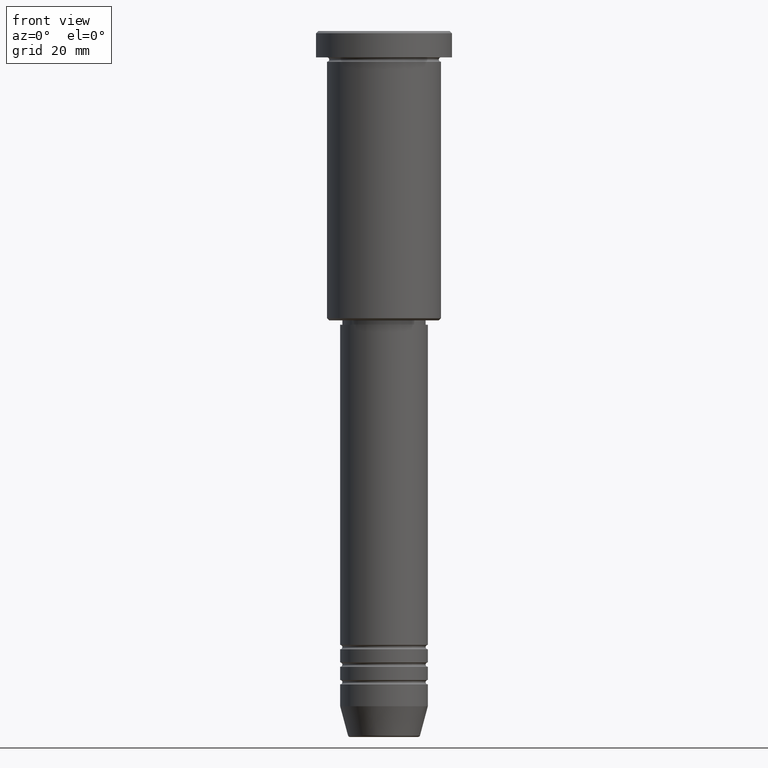
[diagram: clean part render]
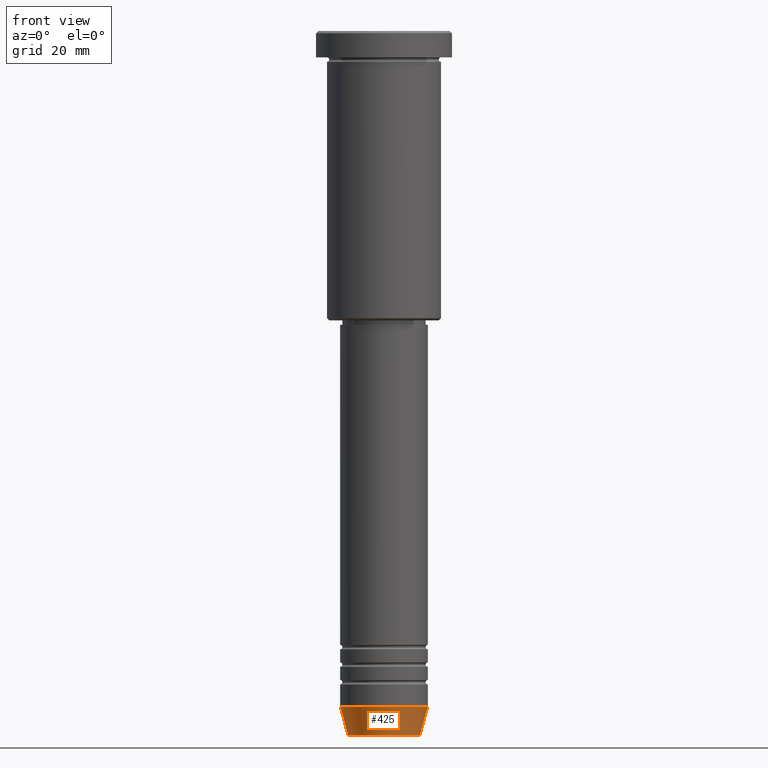
[diagram: same view with one face highlighted and labeled with its STEP entity id]
A machine part, front view. The second image highlights one B-rep face of the part: STEP entity #425.
In plain terms, the highlighted conical surface has half-angle 15 deg.
Its self-contained STEP definition (entity closure, byte-faithful):
#1 = DIRECTION ( 'NONE',  ( 1.000000000000000000, 0.000000000000000000, 0.000000000000000000 ) ) ;
#6 = CARTESIAN_POINT ( 'NONE',  ( 0.000000000000000000, 0.000000000000000000, -160.6294095225512990 ) ) ;
#33 = EDGE_CURVE ( 'NONE', #566, #641, #1142, .T. ) ;
#146 = AXIS2_PLACEMENT_3D ( 'NONE', #411, #852, #1147 ) ;
#179 = CARTESIAN_POINT ( 'NONE',  ( -8.223655072137185940, 1.115877042642911659E-15, -160.6294095225512990 ) ) ;
#184 = CONICAL_SURFACE ( 'NONE', #146, 10.00000000000000000, 0.2617993877991497964 ) ;
#196 = DIRECTION ( 'NONE',  ( -0.000000000000000000, -0.000000000000000000, 1.000000000000000000 ) ) ;
#203 = VERTEX_POINT ( 'NONE', #179 ) ;
#266 = AXIS2_PLACEMENT_3D ( 'NONE', #6, #196, #1 ) ;
#294 = CARTESIAN_POINT ( 'NONE',  ( -10.00000000000000000, 1.224646799147353256E-15, -154.0000000000000284 ) ) ;
#359 = CARTESIAN_POINT ( 'NONE',  ( -10.00000000000000000, 1.224646799147353256E-15, -154.0000000000000284 ) ) ;
#387 = AXIS2_PLACEMENT_3D ( 'NONE', #1120, #404, #493 ) ;
#404 = DIRECTION ( 'NONE',  ( -0.000000000000000000, -0.000000000000000000, 1.000000000000000000 ) ) ;
#411 = CARTESIAN_POINT ( 'NONE',  ( 0.000000000000000000, 0.000000000000000000, -154.0000000000000284 ) ) ;
#425 = ADVANCED_FACE ( 'NONE', ( #1057 ), #184, .T. ) ;
#493 = DIRECTION ( 'NONE',  ( 1.000000000000000000, 0.000000000000000000, 0.000000000000000000 ) ) ;
#566 = VERTEX_POINT ( 'NONE', #1083 ) ;
#587 = EDGE_CURVE ( 'NONE', #203, #1061, #807, .T. ) ;
#588 = DIRECTION ( 'NONE',  ( 0.2588190451025210725, 0.000000000000000000, 0.9659258262890680902 ) ) ;
#633 = DIRECTION ( 'NONE',  ( -0.2588190451025210725, 3.169619151431769255E-17, 0.9659258262890680902 ) ) ;
#641 = VERTEX_POINT ( 'NONE', #1070 ) ;
#693 = ORIENTED_EDGE ( 'NONE', *, *, #587, .F. ) ;
#746 = ORIENTED_EDGE ( 'NONE', *, *, #33, .T. ) ;
#754 = EDGE_LOOP ( 'NONE', ( #693, #949, #746, #923 ) ) ;
#807 = LINE ( 'NONE', #359, #874 ) ;
#852 = DIRECTION ( 'NONE',  ( -0.000000000000000000, -0.000000000000000000, 1.000000000000000000 ) ) ;
#861 = CARTESIAN_POINT ( 'NONE',  ( 10.00000000000000000, 0.000000000000000000, -154.0000000000000284 ) ) ;
#874 = VECTOR ( 'NONE', #633, 1000.000000000000114 ) ;
#906 = EDGE_CURVE ( 'NONE', #203, #566, #977, .T. ) ;
#910 = VECTOR ( 'NONE', #588, 1000.000000000000114 ) ;
#923 = ORIENTED_EDGE ( 'NONE', *, *, #1088, .F. ) ;
#949 = ORIENTED_EDGE ( 'NONE', *, *, #906, .T. ) ;
#977 = CIRCLE ( 'NONE', #266, 8.223655072137185940 ) ;
#1057 = FACE_OUTER_BOUND ( 'NONE', #754, .T. ) ;
#1061 = VERTEX_POINT ( 'NONE', #294 ) ;
#1070 = CARTESIAN_POINT ( 'NONE',  ( 10.00000000000000000, 0.000000000000000000, -154.0000000000000284 ) ) ;
#1076 = CIRCLE ( 'NONE', #387, 10.00000000000000000 ) ;
#1083 = CARTESIAN_POINT ( 'NONE',  ( 8.223655072137185940, 0.000000000000000000, -160.6294095225512990 ) ) ;
#1088 = EDGE_CURVE ( 'NONE', #1061, #641, #1076, .T. ) ;
#1120 = CARTESIAN_POINT ( 'NONE',  ( 0.000000000000000000, 0.000000000000000000, -154.0000000000000284 ) ) ;
#1142 = LINE ( 'NONE', #861, #910 ) ;
#1147 = DIRECTION ( 'NONE',  ( 1.000000000000000000, 0.000000000000000000, 0.000000000000000000 ) ) ;